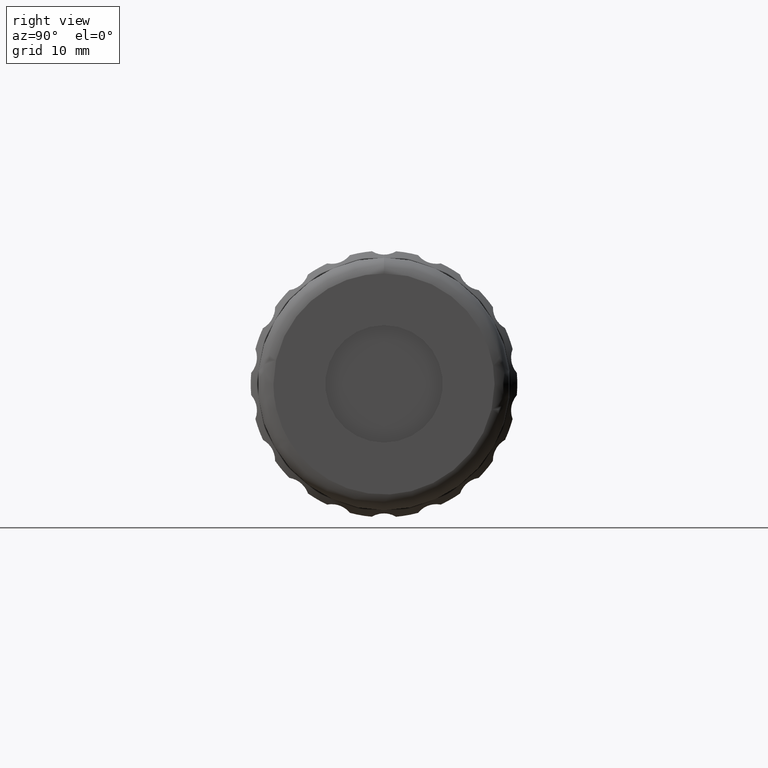
[diagram: clean part render]
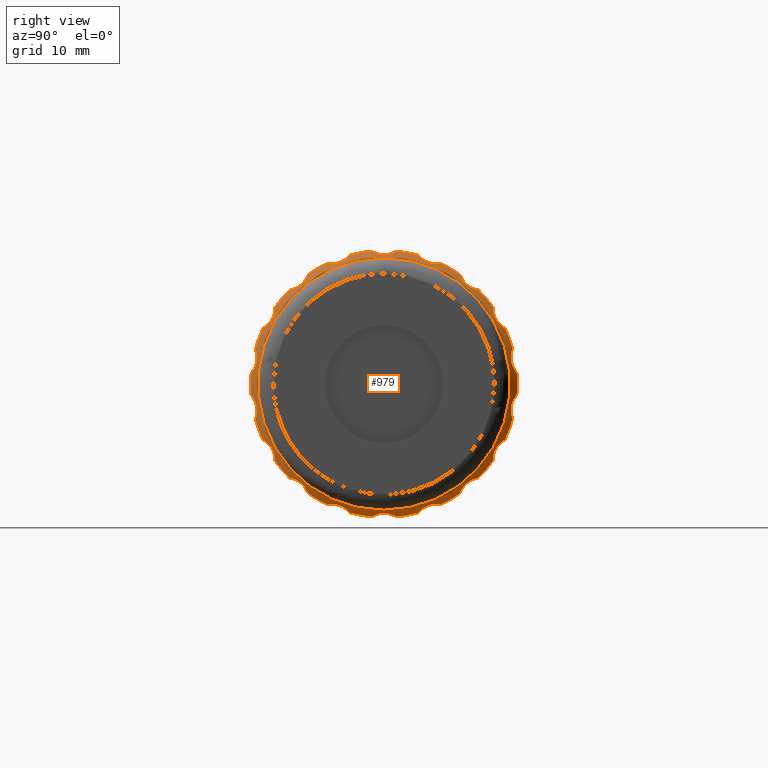
[diagram: same view with one face highlighted and labeled with its STEP entity id]
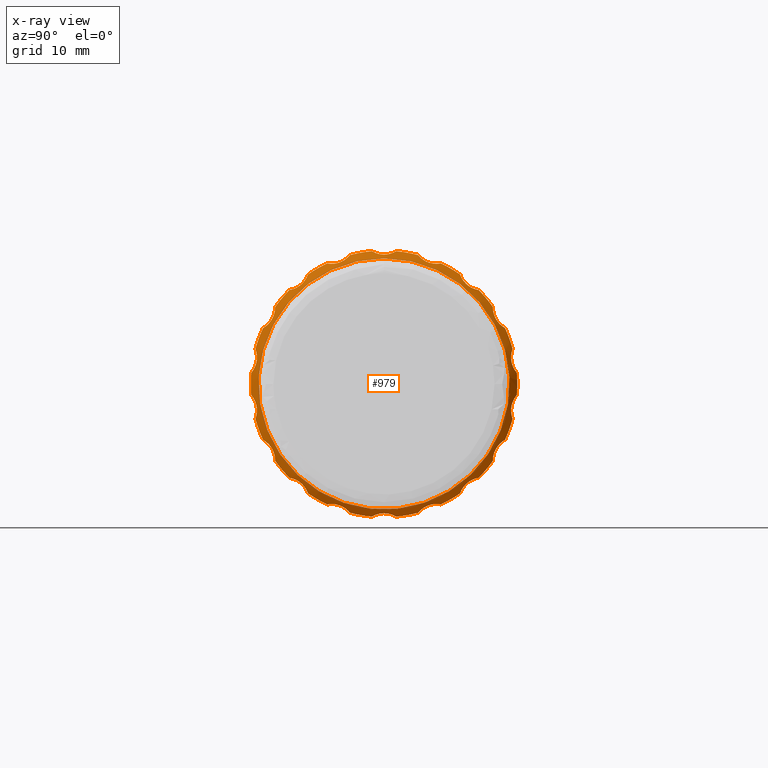
[diagram: x-ray of the same camera — body ghosted, the highlighted face saturated]
A machine part, right view. The second image highlights one B-rep face of the part: STEP entity #979.
The next image is the same camera in x-ray: the body ghosted, the highlighted face saturated — about 11% of this face is hidden behind the body in this view.
In plain terms, the highlighted conical surface has half-angle 45 deg.
Its self-contained STEP definition (entity closure, byte-faithful):
#3 = CARTESIAN_POINT ( 'NONE',  ( 32.44685803487876541, 32.13297559990991914, 9.804276299192837385 ) ) ;
#5 = CARTESIAN_POINT ( 'NONE',  ( 32.88671825240745505, 52.21565638232765849, 15.35848564612278899 ) ) ;
#8 = CARTESIAN_POINT ( 'NONE',  ( 32.59371544402080190, 44.68697132165852537, -16.80145764331209435 ) ) ;
#13 = CIRCLE ( 'NONE', #960, 16.99999999999998579 ) ;
#14 = CARTESIAN_POINT ( 'NONE',  ( 32.44685803487879383, 47.56772114077768521, 16.92948717948718240 ) ) ;
#15 = CARTESIAN_POINT ( 'NONE',  ( 32.94671223884981970, 31.80451600533105250, 8.376639965934812082 ) ) ;
#16 = ORIENTED_EDGE ( 'NONE', *, *, #770, .T. ) ;
#19 = EDGE_CURVE ( 'NONE', #84, #84, #1354, .T. ) ;
#27 = CARTESIAN_POINT ( 'NONE',  ( 32.44685803487877962, 29.61726367720591568, 4.463034991433923793 ) ) ;
#28 = VERTEX_POINT ( 'NONE', #528 ) ;
#29 = CARTESIAN_POINT ( 'NONE',  ( 32.88806413580812915, 51.15274612974332058, 15.74413730464015160 ) ) ;
#31 = CARTESIAN_POINT ( 'NONE',  ( 32.44685803487877962, 29.08007986503451647, 1.416514203673290728 ) ) ;
#40 = EDGE_CURVE ( 'NONE', #1479, #1426, #2026, .T. ) ;
#41 = CARTESIAN_POINT ( 'NONE',  ( 32.59397570363888264, 34.19973174975009300, 12.01325914816415796 ) ) ;
#46 = CARTESIAN_POINT ( 'NONE',  ( 32.85273454226017975, 60.02911114830940420, 8.896813698364438139 ) ) ;
#47 = CARTESIAN_POINT ( 'NONE',  ( 32.85273454226017975, 31.31202075032431154, 7.683006173255041205 ) ) ;
#49 = ORIENTED_EDGE ( 'NONE', *, *, #810, .T. ) ;
#52 = CIRCLE ( 'NONE', #1140, 17.00000000000000000 ) ;
#57 = CIRCLE ( 'NONE', #1356, 17.00000000000000000 ) ;
#58 = CARTESIAN_POINT ( 'NONE',  ( 32.59397570363893237, 32.13747616120608797, -9.555558641669259501 ) ) ;
#59 = CARTESIAN_POINT ( 'NONE',  ( 32.44685803487876541, 32.13297559990991914, 9.804276299192837385 ) ) ;
#60 = EDGE_CURVE ( 'NONE', #1791, #1866, #1993, .T. ) ;
#61 = VERTEX_POINT ( 'NONE', #192 ) ;
#62 = DIRECTION ( 'NONE',  ( 0.000000000000000000, 1.000000000000000000, -1.953992523340275511E-14 ) ) ;
#74 = CARTESIAN_POINT ( 'NONE',  ( 32.93501117040979409, 35.62512614287679469, -12.82915025000381171 ) ) ;
#76 = CARTESIAN_POINT ( 'NONE',  ( 32.93501117040977277, 60.46042658267626280, -8.010141189208873413 ) ) ;
#78 = DIRECTION ( 'NONE',  ( 1.000000000000000000, -0.000000000000000000, -0.000000000000000000 ) ) ;
#84 = VERTEX_POINT ( 'NONE', #735 ) ;
#85 = CARTESIAN_POINT ( 'NONE',  ( 32.93501117040977988, 31.58149741732376725, 8.010141189208871637 ) ) ;
#90 = CARTESIAN_POINT ( 'NONE',  ( 32.44685803487880094, 46.02096199999999726, 0.000000000000000000 ) ) ;
#93 = CARTESIAN_POINT ( 'NONE',  ( 32.59397570363889685, 36.24294634268018456, -13.72771975950780288 ) ) ;
#100 = CARTESIAN_POINT ( 'NONE',  ( 32.71832649179923891, 34.44935860872440969, -12.08340433005123593 ) ) ;
#101 = CARTESIAN_POINT ( 'NONE',  ( 32.44685803487877251, 62.96184413496547450, -1.416514203673302941 ) ) ;
#102 = CARTESIAN_POINT ( 'NONE',  ( 32.44685803487877962, 29.61726367720591568, 4.463034991433923793 ) ) ;
#104 = VERTEX_POINT ( 'NONE', #31 ) ;
#106 = VERTEX_POINT ( 'NONE', #1184 ) ;
#107 = CARTESIAN_POINT ( 'NONE',  ( 32.44685803487879383, 47.56772114077768521, 16.92948717948718240 ) ) ;
#112 = CARTESIAN_POINT ( 'NONE',  ( 32.94671223884982680, 56.51507179325524532, -12.73377765964754893 ) ) ;
#117 = CARTESIAN_POINT ( 'NONE',  ( 32.59397570363893237, 41.52778952056901574, -16.24411527478351047 ) ) ;
#120 = CARTESIAN_POINT ( 'NONE',  ( 32.59397570363886132, 62.33536472968091147, 4.230856126619375601 ) ) ;
#121 = B_SPLINE_CURVE_WITH_KNOTS ( 'NONE', 3,
 ( #3, #363, #175, #1302, #1511, #1950, #15, #663, #85, #380, #47, #234, #867, #723 ),
 .UNSPECIFIED., .F., .F.,
 ( 4, 2, 2, 2, 2, 2, 4 ),
 ( 1.398578778534940505E-17, 0.0008570537395405541025, 0.001285580609310826112, 0.001714107479081098664, 0.002142634348851370999, 0.002571161218621643117, 0.003428214958162182583 ),
 .UNSPECIFIED. ) ;
#124 = CARTESIAN_POINT ( 'NONE',  ( 32.85273454226017975, 29.81471811820888362, -3.569201001427910303 ) ) ;
#125 = CARTESIAN_POINT ( 'NONE',  ( 32.44685803487877251, 46.02096199999999726, 0.000000000000000000 ) ) ;
#132 = CARTESIAN_POINT ( 'NONE',  ( 32.44685803487879383, 59.90894840009004696, 9.804276299192796529 ) ) ;
#141 = CARTESIAN_POINT ( 'NONE',  ( 32.44685803487879383, 44.47420285922232353, 16.92948717948717530 ) ) ;
#146 = CARTESIAN_POINT ( 'NONE',  ( 32.85210940846931749, 29.57040993796760020, -2.186719745017569050 ) ) ;
#152 = EDGE_LOOP ( 'NONE', ( #782 ) ) ;
#163 = B_SPLINE_CURVE_WITH_KNOTS ( 'NONE', 3,
 ( #1350, #1177, #1669, #1644, #207, #855, #1187, #866, #1510, #1196, #46, #370, #833, #2007 ),
 .UNSPECIFIED., .F., .F.,
 ( 4, 2, 2, 2, 2, 2, 4 ),
 ( 1.821459649775647449E-17, 0.0008570537395405575720, 0.001285580609310824811, 0.001714107479081089990, 0.002142634348851355387, 0.002571161218621621000, 0.003428214958162146588 ),
 .UNSPECIFIED. ) ;
#173 = CARTESIAN_POINT ( 'NONE',  ( 32.94671223884987654, 51.52699107420922076, -15.55503383706367870 ) ) ;
#175 = CARTESIAN_POINT ( 'NONE',  ( 32.71832649179923180, 32.11174389140475682, 9.297543592584467831 ) ) ;
#182 = CARTESIAN_POINT ( 'NONE',  ( 32.44685803487877962, 33.95401115804232006, 11.97450196783887932 ) ) ;
#184 = CARTESIAN_POINT ( 'NONE',  ( 32.88671825240743374, 40.89412893152615425, 15.74715537869002624 ) ) ;
#185 = AXIS2_PLACEMENT_3D ( 'NONE', #1491, #1317, #1965 ) ;
#192 = CARTESIAN_POINT ( 'NONE',  ( 32.44685803487879383, 44.47420285922232353, 16.92948717948717530 ) ) ;
#194 = DIRECTION ( 'NONE',  ( 1.000000000000000000, -0.000000000000000000, -0.000000000000000000 ) ) ;
#196 = VERTEX_POINT ( 'NONE', #1526 ) ;
#202 = CARTESIAN_POINT ( 'NONE',  ( 32.88806413580809362, 46.58347441928598442, -16.54982318938170494 ) ) ;
#207 = CARTESIAN_POINT ( 'NONE',  ( 32.88671825240740532, 60.63861748527881446, 7.783409789179931870 ) ) ;
#208 = CARTESIAN_POINT ( 'NONE',  ( 32.93404516599887444, 29.81145125225690151, 3.153385542406650810 ) ) ;
#212 = B_SPLINE_CURVE_WITH_KNOTS ( 'NONE', 3,
 ( #107, #1112, #1910, #1583, #2103, #444, #1941, #2070, #458, #1259, #1571, #1763, #274, #141 ),
 .UNSPECIFIED., .F., .F.,
 ( 4, 2, 2, 2, 2, 2, 4 ),
 ( 0.000000000000000000, 0.0008570537395405847855, 0.001285580609310872299, 0.001714107479081159813, 0.002142634348851447327, 0.002571161218621734624, 0.003428214958162296641 ),
 .UNSPECIFIED. ) ;
#214 = EDGE_CURVE ( 'NONE', #1120, #423, #253, .T. ) ;
#219 = CIRCLE ( 'NONE', #1682, 17.00000000000000000 ) ;
#223 = CARTESIAN_POINT ( 'NONE',  ( 32.88671825240744084, 45.45276486285489881, -16.55096588861032814 ) ) ;
#229 = CARTESIAN_POINT ( 'NONE',  ( 32.88806413580812915, 31.96965089949768668, -8.762061639736757002 ) ) ;
#230 = CARTESIAN_POINT ( 'NONE',  ( 32.59397570363887553, 61.23806145043451465, -7.245672108642466469 ) ) ;
#233 = CARTESIAN_POINT ( 'NONE',  ( 32.94671223884983391, 35.30292207748090760, -12.54587797077277322 ) ) ;
#234 = CARTESIAN_POINT ( 'NONE',  ( 32.71993598786255575, 31.01754010897460034, 7.399571673583222875 ) ) ;
#239 = ORIENTED_EDGE ( 'NONE', *, *, #1799, .T. ) ;
#240 = CARTESIAN_POINT ( 'NONE',  ( 32.85273454226020107, 35.90049711072168748, -13.15133936029217665 ) ) ;
#241 = CARTESIAN_POINT ( 'NONE',  ( 32.59397570363888264, 57.84219225024989441, -12.01325914816416329 ) ) ;
#242 = CARTESIAN_POINT ( 'NONE',  ( 32.59371544402077348, 59.90445580054581853, -9.555998637511386562 ) ) ;
#248 = AXIS2_PLACEMENT_3D ( 'NONE', #90, #1025, #426 ) ;
#251 = CARTESIAN_POINT ( 'NONE',  ( 32.93404516599888154, 62.23047274774312143, -3.153385542406664577 ) ) ;
#253 = CIRCLE ( 'NONE', #2059, 16.99999999999997513 ) ;
#259 = CARTESIAN_POINT ( 'NONE',  ( 32.94700126034474152, 62.29466383950087760, -2.726265681694565846 ) ) ;
#269 = CARTESIAN_POINT ( 'NONE',  ( 32.59371544402080190, 57.84262694411020078, 12.01319058448289923 ) ) ;
#270 = DIRECTION ( 'NONE',  ( 0.000000000000000000, 0.000000000000000000, 1.000000000000000000 ) ) ;
#274 = CARTESIAN_POINT ( 'NONE',  ( 32.59397570363890395, 44.68734838835946022, 16.80123075031171354 ) ) ;
#279 = CARTESIAN_POINT ( 'NONE',  ( 32.93404516599890286, 56.85662936152226621, 12.46115531925905273 ) ) ;
#281 = CARTESIAN_POINT ( 'NONE',  ( 32.44685803487878673, 46.02096199999999726, 0.000000000000000000 ) ) ;
#285 = CARTESIAN_POINT ( 'NONE',  ( 32.94671223884986944, 40.24024195723010422, -15.45505450088583821 ) ) ;
#296 = CARTESIAN_POINT ( 'NONE',  ( 32.93501117040981541, 40.63989956541264092, -15.61104309072564078 ) ) ;
#311 = CARTESIAN_POINT ( 'NONE',  ( 32.94671223884979838, 29.74613216397480997, -2.721276841238304378 ) ) ;
#313 = VERTEX_POINT ( 'NONE', #1459 ) ;
#324 = CARTESIAN_POINT ( 'NONE',  ( 32.94700126034471310, 29.79624668935391441, -3.004082092195002662 ) ) ;
#325 = EDGE_CURVE ( 'NONE', #1426, #61, #212, .T. ) ;
#328 = DIRECTION ( 'NONE',  ( 0.000000000000000000, 1.000000000000000000, 8.881784197001252323E-16 ) ) ;
#330 = ORIENTED_EDGE ( 'NONE', *, *, #1453, .T. ) ;
#331 = CARTESIAN_POINT ( 'NONE',  ( 32.44685803487878673, 61.45570754086772070, 7.125210880294360116 ) ) ;
#333 = CARTESIAN_POINT ( 'NONE',  ( 32.71832649179925312, 44.92366211032619816, -16.69450802511422438 ) ) ;
#334 = CARTESIAN_POINT ( 'NONE',  ( 32.85273454226021528, 34.82682132065500724, 12.25041840084325884 ) ) ;
#336 = CARTESIAN_POINT ( 'NONE',  ( 32.88806413580810073, 39.83200033124971640, 15.35935614810683880 ) ) ;
#351 = DIRECTION ( 'NONE',  ( 0.000000000000000000, 1.000000000000000000, 0.000000000000000000 ) ) ;
#353 = EDGE_CURVE ( 'NONE', #1933, #1120, #1488, .T. ) ;
#363 = CARTESIAN_POINT ( 'NONE',  ( 32.59371544402078769, 32.13746819945419020, 9.555998637511374127 ) ) ;
#366 = DIRECTION ( 'NONE',  ( 0.000000000000000000, 0.000000000000000000, 1.000000000000000000 ) ) ;
#368 = VERTEX_POINT ( 'NONE', #1087 ) ;
#370 = CARTESIAN_POINT ( 'NONE',  ( 32.71993598786254864, 59.93088999195953903, 9.293558664531927249 ) ) ;
#374 = EDGE_CURVE ( 'NONE', #1866, #1962, #57, .T. ) ;
#379 = CARTESIAN_POINT ( 'NONE',  ( 32.94671223884989075, 31.65835599381003362, -8.123483399945421013 ) ) ;
#380 = CARTESIAN_POINT ( 'NONE',  ( 32.88806413580806520, 31.40713848021163557, 7.787761549644993231 ) ) ;
#387 = ORIENTED_EDGE ( 'NONE', *, *, #743, .T. ) ;
#407 = CARTESIAN_POINT ( 'NONE',  ( 32.44685803487877962, 62.42466032279407528, -4.463034991433911358 ) ) ;
#420 = DIRECTION ( 'NONE',  ( -1.000000000000000000, 0.000000000000000000, 0.000000000000000000 ) ) ;
#423 = VERTEX_POINT ( 'NONE', #331 ) ;
#426 = DIRECTION ( 'NONE',  ( 0.000000000000000000, 1.000000000000000000, -7.105427357601001859E-15 ) ) ;
#429 = CARTESIAN_POINT ( 'NONE',  ( 32.44685803487877251, 44.47420285922230221, -16.92948717948720727 ) ) ;
#440 = CARTESIAN_POINT ( 'NONE',  ( 32.88806413580808652, 56.22807377565807485, 13.03947610223928599 ) ) ;
#441 = DIRECTION ( 'NONE',  ( -1.000000000000000000, 0.000000000000000000, 2.040851148208006519E-16 ) ) ;
#443 = CARTESIAN_POINT ( 'NONE',  ( 32.93404516599894549, 40.10073146738320560, -15.41567220399188543 ) ) ;
#444 = CARTESIAN_POINT ( 'NONE',  ( 32.93404516599891707, 46.31168852818061055, 16.51083150983224357 ) ) ;
#458 = CARTESIAN_POINT ( 'NONE',  ( 32.93501117040980120, 45.73821546641686098, 16.51001374024769675 ) ) ;
#462 = FACE_BOUND ( 'NONE', #152, .T. ) ;
#463 = EDGE_CURVE ( 'NONE', #1395, #1479, #820, .T. ) ;
#468 = DIRECTION ( 'NONE',  ( 1.000000000000000000, -0.000000000000000000, -2.040851148208006519E-16 ) ) ;
#470 = B_SPLINE_CURVE_WITH_KNOTS ( 'NONE', 3,
 ( #1546, #242, #1998, #1197, #1027, #570, #2016, #1872, #76, #1714, #1836, #1689, #230, #1046 ),
 .UNSPECIFIED., .F., .F.,
 ( 4, 2, 2, 2, 2, 2, 4 ),
 ( 2.194270917860438266E-17, 0.0008570537395405623425, 0.001285580609310835003, 0.001714107479081107555, 0.002142634348851380106, 0.002571161218621652658, 0.003428214958162185619 ),
 .UNSPECIFIED. ) ;
#471 = DIRECTION ( 'NONE',  ( 1.000000000000000000, -0.000000000000000000, -0.000000000000000000 ) ) ;
#475 = CARTESIAN_POINT ( 'NONE',  ( 32.93501117040981541, 51.93341409690916066, -15.41763307084374546 ) ) ;
#477 = CARTESIAN_POINT ( 'NONE',  ( 32.71993598786254154, 29.39155459811817650, 1.821850393098595644 ) ) ;
#479 = CARTESIAN_POINT ( 'NONE',  ( 32.88806413580806520, 62.22167693136037769, 3.427813229224471847 ) ) ;
#482 = CIRCLE ( 'NONE', #1987, 17.00000000000000000 ) ;
#486 = CARTESIAN_POINT ( 'NONE',  ( 32.44685803487880804, 50.35770948083634835, -16.43753695927276226 ) ) ;
#500 = CARTESIAN_POINT ( 'NONE',  ( 32.44685803487878673, 33.95401115804229875, -11.97450196783888821 ) ) ;
#501 = CARTESIAN_POINT ( 'NONE',  ( 32.85210940846931038, 29.81459741884976111, 3.571575765922793355 ) ) ;
#512 = CARTESIAN_POINT ( 'NONE',  ( 32.71993598786259838, 32.11103400804057628, -9.293558664531980540 ) ) ;
#513 = CARTESIAN_POINT ( 'NONE',  ( 32.59397570363886842, 29.24340012357269458, 1.604150078087035025 ) ) ;
#527 = CIRCLE ( 'NONE', #1718, 16.99999999999997513 ) ;
#528 = CARTESIAN_POINT ( 'NONE',  ( 32.44685803487877962, 33.95401115804232006, 11.97450196783887932 ) ) ;
#542 = CARTESIAN_POINT ( 'NONE',  ( 32.93404516599894549, 31.57679921079044405, -8.003639195957664043 ) ) ;
#546 = DIRECTION ( 'NONE',  ( 1.000000000000000000, -0.000000000000000000, -0.000000000000000000 ) ) ;
#562 = VERTEX_POINT ( 'NONE', #908 ) ;
#563 = B_SPLINE_CURVE_WITH_KNOTS ( 'NONE', 3,
 ( #686, #1530, #1826, #1658, #994, #542, #379, #675, #1007, #229, #1975, #512, #58, #1327 ),
 .UNSPECIFIED., .F., .F.,
 ( 4, 2, 2, 2, 2, 2, 4 ),
 ( 8.673617379884035472E-19, 0.0008570537395405953022, 0.001285580609310886611, 0.001714107479081175859, 0.002142634348851465542, 0.002571161218621754573, 0.003428214958162343045 ),
 .UNSPECIFIED. ) ;
#565 = CARTESIAN_POINT ( 'NONE',  ( 32.44685803487882225, 46.02096199999999726, 0.000000000000000000 ) ) ;
#569 = CARTESIAN_POINT ( 'NONE',  ( 32.44685803487877962, 38.77725821771979042, -15.37949139323468373 ) ) ;
#570 = CARTESIAN_POINT ( 'NONE',  ( 32.93404516599885312, 60.17439826102904021, -8.507192313874591960 ) ) ;
#571 = EDGE_CURVE ( 'NONE', #816, #1879, #702, .T. ) ;
#572 = ORIENTED_EDGE ( 'NONE', *, *, #651, .T. ) ;
#578 = CARTESIAN_POINT ( 'NONE',  ( 32.59397570363891816, 55.79897765731979575, 13.72771975950780821 ) ) ;
#581 = ORIENTED_EDGE ( 'NONE', *, *, #1261, .T. ) ;
#589 = AXIS2_PLACEMENT_3D ( 'NONE', #125, #1906, #765 ) ;
#593 = DIRECTION ( 'NONE',  ( 1.000000000000000000, -0.000000000000000000, -0.000000000000000000 ) ) ;
#598 = CARTESIAN_POINT ( 'NONE',  ( 32.71832649179923180, 62.65238706205303032, 1.818341456876850781 ) ) ;
#602 = CARTESIAN_POINT ( 'NONE',  ( 32.93501117040977988, 56.84999067884827895, -12.46565831306566352 ) ) ;
#604 = VERTEX_POINT ( 'NONE', #2018 ) ;
#607 = CARTESIAN_POINT ( 'NONE',  ( 32.85210940846929617, 62.47151406203238366, 2.186719745017569494 ) ) ;
#610 = EDGE_CURVE ( 'NONE', #1312, #104, #482, .T. ) ;
#611 = DIRECTION ( 'NONE',  ( 0.000000000000000000, 1.000000000000000000, 0.000000000000000000 ) ) ;
#612 = CARTESIAN_POINT ( 'NONE',  ( 32.71832649179923180, 62.27129880966106157, -3.979600334337187739 ) ) ;
#617 = AXIS2_PLACEMENT_3D ( 'NONE', #1224, #736, #883 ) ;
#620 = CIRCLE ( 'NONE', #617, 16.99999999999998579 ) ;
#623 = CARTESIAN_POINT ( 'NONE',  ( 32.59397570363888974, 29.70655927031907595, -4.230856126619375601 ) ) ;
#626 = DIRECTION ( 'NONE',  ( 1.000000000000000000, -0.000000000000000000, -0.000000000000000000 ) ) ;
#630 = CARTESIAN_POINT ( 'NONE',  ( 32.59371544402078058, 62.79881279935864313, 1.603818139432604095 ) ) ;
#632 = CARTESIAN_POINT ( 'NONE',  ( 33.44685803487879383, 46.02096199999999726, -2.040851148208057549E-16 ) ) ;
#633 = CARTESIAN_POINT ( 'NONE',  ( 32.71993598786256285, 29.77132104384358158, -3.975612932441852099 ) ) ;
#637 = CARTESIAN_POINT ( 'NONE',  ( 32.94700126034472021, 29.74726016049911692, 2.726265681694551635 ) ) ;
#639 = B_SPLINE_CURVE_WITH_KNOTS ( 'NONE', 3,
 ( #1074, #269, #2043, #1881, #1557, #279, #1223, #1397, #1725, #440, #1566, #2075, #578, #775 ),
 .UNSPECIFIED., .F., .F.,
 ( 4, 2, 2, 2, 2, 2, 4 ),
 ( 2.255140518769849223E-17, 0.0008570537395405681972, 0.001285580609310841074, 0.001714107479081113843, 0.002142634348851386612, 0.002571161218621659597, 0.003428214958162220313 ),
 .UNSPECIFIED. ) ;
#649 = CARTESIAN_POINT ( 'NONE',  ( 32.71832649179923891, 29.77062519033893651, 3.979600334337169087 ) ) ;
#651 = EDGE_CURVE ( 'NONE', #1169, #562, #1343, .T. ) ;
#653 = CARTESIAN_POINT ( 'NONE',  ( 32.93404516599894549, 51.94119253261677471, 15.41567220399189075 ) ) ;
#660 = CARTESIAN_POINT ( 'NONE',  ( 32.94700126034477705, 51.79679758193721995, -15.45657204746853175 ) ) ;
#663 = CARTESIAN_POINT ( 'NONE',  ( 32.94700126034473442, 31.66112224774798278, 8.127785578975540659 ) ) ;
#666 = CARTESIAN_POINT ( 'NONE',  ( 32.85273454226024370, 51.03306520244602495, 15.81961940227117758 ) ) ;
#669 = CARTESIAN_POINT ( 'NONE',  ( 32.94700126034476284, 46.16201308822036253, -16.49987880921160865 ) ) ;
#674 = CARTESIAN_POINT ( 'NONE',  ( 32.93404516599894549, 51.39480538622076011, -15.61454086166568445 ) ) ;
#675 = CARTESIAN_POINT ( 'NONE',  ( 32.94700126034479837, 31.80217333596844398, -8.372093230236085759 ) ) ;
#676 = CARTESIAN_POINT ( 'NONE',  ( 32.59371544402078058, 29.70640130127866385, 4.231266864385898607 ) ) ;
#678 = CARTESIAN_POINT ( 'NONE',  ( 32.59371544402083742, 53.02094014788040255, 15.33195408286590578 ) ) ;
#682 = EDGE_CURVE ( 'NONE', #2041, #313, #2029, .T. ) ;
#685 = CARTESIAN_POINT ( 'NONE',  ( 32.88671825240747637, 51.14779506847382606, -15.74715537868998183 ) ) ;
#686 = CARTESIAN_POINT ( 'NONE',  ( 32.44685803487880804, 30.58621645913232001, -7.125210880294336135 ) ) ;
#689 = CARTESIAN_POINT ( 'NONE',  ( 32.44685803487880094, 50.35770948083630572, 16.43753695927281200 ) ) ;
#702 = CIRCLE ( 'NONE', #1889, 16.99999999999998579 ) ;
#723 = CARTESIAN_POINT ( 'NONE',  ( 32.44685803487879383, 30.58621645913232356, 7.125210880294359228 ) ) ;
#735 = CARTESIAN_POINT ( 'NONE',  ( 33.44685803487879383, 46.02096199999999726, 15.99999999999999645 ) ) ;
#736 = DIRECTION ( 'NONE',  ( 1.000000000000000000, -0.000000000000000000, -0.000000000000000000 ) ) ;
#742 = ORIENTED_EDGE ( 'NONE', *, *, #60, .T. ) ;
#743 = EDGE_CURVE ( 'NONE', #1336, #2037, #13, .T. ) ;
#745 = CARTESIAN_POINT ( 'NONE',  ( 32.85273454226017975, 62.47058842444242543, -2.188910012077419420 ) ) ;
#752 = CARTESIAN_POINT ( 'NONE',  ( 32.85210940846931038, 34.82470436459487928, -12.24933554730703378 ) ) ;
#756 = VERTEX_POINT ( 'NONE', #1340 ) ;
#757 = CIRCLE ( 'NONE', #2019, 17.00000000000000000 ) ;
#765 = DIRECTION ( 'NONE',  ( 0.000000000000000000, 1.000000000000000000, -3.552713678800500929E-15 ) ) ;
#769 = CARTESIAN_POINT ( 'NONE',  ( 32.44685803487878673, 46.02096199999999726, 0.000000000000000000 ) ) ;
#770 = EDGE_CURVE ( 'NONE', #28, #857, #1377, .T. ) ;
#775 = CARTESIAN_POINT ( 'NONE',  ( 32.44685803487878673, 55.71814035268528187, 13.96297718956140166 ) ) ;
#777 = CARTESIAN_POINT ( 'NONE',  ( 32.88806413580811494, 40.88917787025669526, -15.74413730464013028 ) ) ;
#781 = EDGE_CURVE ( 'NONE', #992, #104, #1650, .T. ) ;
#782 = ORIENTED_EDGE ( 'NONE', *, *, #19, .F. ) ;
#790 = CARTESIAN_POINT ( 'NONE',  ( 32.94700126034474152, 62.24567731064608722, 3.004082092195003106 ) ) ;
#795 = CARTESIAN_POINT ( 'NONE',  ( 32.71832649179921759, 29.38953693794697131, -1.818341456876848783 ) ) ;
#798 = CIRCLE ( 'NONE', #1351, 17.00000000000000000 ) ;
#799 = CARTESIAN_POINT ( 'NONE',  ( 32.59371544402079479, 41.52806624538890645, 16.24445744886884668 ) ) ;
#800 = CARTESIAN_POINT ( 'NONE',  ( 32.44685803487880094, 50.35770948083630572, 16.43753695927281200 ) ) ;
#804 = CARTESIAN_POINT ( 'NONE',  ( 32.71993598786254864, 62.27060295615641650, 3.975612932441850322 ) ) ;
#809 = CARTESIAN_POINT ( 'NONE',  ( 32.44685803487880804, 62.42466032279404686, 4.463034991433892706 ) ) ;
#810 = EDGE_CURVE ( 'NONE', #857, #1837, #121, .T. ) ;
#816 = VERTEX_POINT ( 'NONE', #1696 ) ;
#820 = B_SPLINE_CURVE_WITH_KNOTS ( 'NONE', 3,
 ( #1159, #678, #1470, #1978, #5, #653, #1952, #1672, #987, #29, #666, #1147, #1796, #689 ),
 .UNSPECIFIED., .F., .F.,
 ( 4, 2, 2, 2, 2, 2, 4 ),
 ( 6.938893903907227607E-18, 0.0008570537395405813160, 0.001285580609310871866, 0.001714107479081162415, 0.002142634348851451230, 0.002571161218621741996, 0.003428214958162328733 ),
 .UNSPECIFIED. ) ;
#822 = EDGE_CURVE ( 'NONE', #1180, #368, #620, .T. ) ;
#833 = CARTESIAN_POINT ( 'NONE',  ( 32.59397570363886842, 59.90444783879402024, 9.555558641669255948 ) ) ;
#838 = AXIS2_PLACEMENT_3D ( 'NONE', #632, #468, #366 ) ;
#845 = ORIENTED_EDGE ( 'NONE', *, *, #1178, .T. ) ;
#846 = CARTESIAN_POINT ( 'NONE',  ( 32.71993598786256285, 52.75789697862287397, -15.31241445645989252 ) ) ;
#855 = CARTESIAN_POINT ( 'NONE',  ( 32.93404516599887444, 60.46512478920966061, 8.003639195957678254 ) ) ;
#856 = CARTESIAN_POINT ( 'NONE',  ( 32.85273454226015843, 29.57133557555759396, 2.188910012077406986 ) ) ;
#857 = VERTEX_POINT ( 'NONE', #59 ) ;
#861 = CARTESIAN_POINT ( 'NONE',  ( 32.94700126034476284, 35.30699293778219783, 12.54897458209229022 ) ) ;
#866 = CARTESIAN_POINT ( 'NONE',  ( 32.94700126034472021, 60.23975066403164647, 8.372093230236089312 ) ) ;
#867 = CARTESIAN_POINT ( 'NONE',  ( 32.59397570363886842, 30.80386254956549053, 7.245672108642462028 ) ) ;
#869 = ORIENTED_EDGE ( 'NONE', *, *, #325, .T. ) ;
#877 = VERTEX_POINT ( 'NONE', #2025 ) ;
#882 = CARTESIAN_POINT ( 'NONE',  ( 32.88806413580807941, 35.81385022434190546, -13.03947610223929310 ) ) ;
#883 = DIRECTION ( 'NONE',  ( 0.000000000000000000, 1.000000000000000000, 0.000000000000000000 ) ) ;
#892 = CARTESIAN_POINT ( 'NONE',  ( 32.44685803487877962, 58.08791284195767446, -11.97450196783888110 ) ) ;
#908 = CARTESIAN_POINT ( 'NONE',  ( 32.44685803487879383, 55.71814035268526766, -13.96297718956138922 ) ) ;
#913 = DIRECTION ( 'NONE',  ( 0.000000000000000000, 0.000000000000000000, 1.000000000000000000 ) ) ;
#923 = CARTESIAN_POINT ( 'NONE',  ( 32.93404516599890286, 56.41121047876224281, -12.83490613950238668 ) ) ;
#925 = EDGE_CURVE ( 'NONE', #604, #816, #470, .T. ) ;
#927 = CONICAL_SURFACE ( 'NONE', #1711, 17.00000000000001421, 0.7853981633974447263 ) ;
#928 = DIRECTION ( 'NONE',  ( 1.000000000000000000, -0.000000000000000000, -0.000000000000000000 ) ) ;
#930 = DIRECTION ( 'NONE',  ( 1.000000000000000000, -0.000000000000000000, -0.000000000000000000 ) ) ;
#932 = CIRCLE ( 'NONE', #248, 16.99999999999998579 ) ;
#934 = CARTESIAN_POINT ( 'NONE',  ( 32.44685803487877251, 62.96184413496547450, 1.416514203673303385 ) ) ;
#936 = CARTESIAN_POINT ( 'NONE',  ( 32.71993598786254154, 57.58876427318681834, -12.08479540418657017 ) ) ;
#940 = CARTESIAN_POINT ( 'NONE',  ( 32.44685803487877962, 38.77725821771979042, -15.37949139323468373 ) ) ;
#944 = ORIENTED_EDGE ( 'NONE', *, *, #1152, .T. ) ;
#950 = CARTESIAN_POINT ( 'NONE',  ( 32.44685803487877251, 62.96184413496547450, 1.416514203673303385 ) ) ;
#958 = CARTESIAN_POINT ( 'NONE',  ( 32.44685803487879383, 41.68421451916365328, -16.43753695927281200 ) ) ;
#960 = AXIS2_PLACEMENT_3D ( 'NONE', #1670, #1477, #351 ) ;
#971 = CARTESIAN_POINT ( 'NONE',  ( 32.44685803487878673, 46.02096199999999726, 0.000000000000000000 ) ) ;
#977 = B_SPLINE_CURVE_WITH_KNOTS ( 'NONE', 3,
 ( #407, #1244, #612, #1063, #1407, #251, #1418, #259, #1863, #1588, #745, #1713, #1233, #101 ),
 .UNSPECIFIED., .F., .F.,
 ( 4, 2, 2, 2, 2, 2, 4 ),
 ( 6.071532165918824830E-18, 0.0008570537395405441279, 0.001285580609310812668, 0.001714107479081081534, 0.002142634348851350182, 0.002571161218621618831, 0.003428214958162156129 ),
 .UNSPECIFIED. ) ;
#979 = ADVANCED_FACE ( 'NONE', ( #2055, #462 ), #927, .T. ) ;
#980 = DIRECTION ( 'NONE',  ( 1.000000000000000000, -0.000000000000000000, -0.000000000000000000 ) ) ;
#983 = CARTESIAN_POINT ( 'NONE',  ( 32.71832649179924601, 41.34222858161454184, 16.06300466438845120 ) ) ;
#987 = CARTESIAN_POINT ( 'NONE',  ( 32.93501117040981541, 51.40202443458736070, 15.61104309072564966 ) ) ;
#992 = VERTEX_POINT ( 'NONE', #102 ) ;
#993 = CARTESIAN_POINT ( 'NONE',  ( 32.44685803487880094, 32.13297559991000441, -9.804276299192871136 ) ) ;
#994 = CARTESIAN_POINT ( 'NONE',  ( 32.88671825240747637, 31.40330651472126533, -7.783409789179908778 ) ) ;
#1001 = CARTESIAN_POINT ( 'NONE',  ( 32.85273454226022238, 46.72175410136635065, -16.57981987161947046 ) ) ;
#1002 = B_SPLINE_CURVE_WITH_KNOTS ( 'NONE', 3,
 ( #500, #1156, #100, #752, #1396, #1695, #233, #1207, #74, #882, #240, #2014, #93, #1724 ),
 .UNSPECIFIED., .F., .F.,
 ( 4, 2, 2, 2, 2, 2, 4 ),
 ( 1.636534854170084423E-17, 0.0008570537395405636435, 0.001285580609310837171, 0.001714107479081110807, 0.002142634348851384877, 0.002571161218621658296, 0.003428214958162212507 ),
 .UNSPECIFIED. ) ;
#1005 = ORIENTED_EDGE ( 'NONE', *, *, #463, .T. ) ;
#1006 = CARTESIAN_POINT ( 'NONE',  ( 32.94700126034476995, 40.24512641806274615, 15.45657204746855840 ) ) ;
#1007 = CARTESIAN_POINT ( 'NONE',  ( 32.93501117040983672, 31.86424395090698525, -8.499872551038858859 ) ) ;
#1010 = EDGE_CURVE ( 'NONE', #313, #1791, #219, .T. ) ;
#1016 = ORIENTED_EDGE ( 'NONE', *, *, #1022, .T. ) ;
#1022 = EDGE_CURVE ( 'NONE', #61, #756, #757, .T. ) ;
#1025 = DIRECTION ( 'NONE',  ( 1.000000000000000000, -0.000000000000000000, -0.000000000000000000 ) ) ;
#1027 = CARTESIAN_POINT ( 'NONE',  ( 32.88671825240738400, 60.07042034813371600, -8.767556099430425576 ) ) ;
#1030 = CARTESIAN_POINT ( 'NONE',  ( 32.59397570363889685, 47.35457561164055562, -16.80123075031171709 ) ) ;
#1040 = B_SPLINE_CURVE_WITH_KNOTS ( 'NONE', 3,
 ( #1155, #799, #983, #1803, #184, #1814, #1465, #1006, #1128, #336, #1779, #1499, #1983, #1176 ),
 .UNSPECIFIED., .F., .F.,
 ( 4, 2, 2, 2, 2, 2, 4 ),
 ( 1.430489624538199204E-17, 0.0008570537395405792560, 0.001285580609310864927, 0.001714107479081150706, 0.002142634348851436485, 0.002571161218621722047, 0.003428214958162300111 ),
 .UNSPECIFIED. ) ;
#1046 = CARTESIAN_POINT ( 'NONE',  ( 32.44685803487879383, 61.45570754086768517, -7.125210880294358340 ) ) ;
#1049 = DIRECTION ( 'NONE',  ( 0.000000000000000000, 0.000000000000000000, 1.000000000000000000 ) ) ;
#1053 = CARTESIAN_POINT ( 'NONE',  ( 32.44685803487879383, 55.71814035268526766, -13.96297718956138922 ) ) ;
#1061 = AXIS2_PLACEMENT_3D ( 'NONE', #769, #928, #1930 ) ;
#1063 = CARTESIAN_POINT ( 'NONE',  ( 32.85210940846930328, 62.22732658115022275, -3.571575765922810231 ) ) ;
#1068 = CIRCLE ( 'NONE', #589, 17.00000000000001421 ) ;
#1074 = CARTESIAN_POINT ( 'NONE',  ( 32.44685803487877962, 58.08791284195770288, 11.97450196783888643 ) ) ;
#1076 = ORIENTED_EDGE ( 'NONE', *, *, #2021, .T. ) ;
#1082 = CARTESIAN_POINT ( 'NONE',  ( 32.44685803487877251, 29.08007986503451647, -1.416514203673299832 ) ) ;
#1083 = CARTESIAN_POINT ( 'NONE',  ( 32.85210940846933880, 56.13999288115840614, -13.15323611948971383 ) ) ;
#1087 = CARTESIAN_POINT ( 'NONE',  ( 32.44685803487878673, 33.95401115804229875, -11.97450196783888821 ) ) ;
#1092 = CARTESIAN_POINT ( 'NONE',  ( 32.59371544402082321, 55.79883465147822363, -13.72813594343331189 ) ) ;
#1097 = CARTESIAN_POINT ( 'NONE',  ( 32.71993598786259838, 41.33912331703049858, -16.06040833662843070 ) ) ;
#1111 = VERTEX_POINT ( 'NONE', #1289 ) ;
#1112 = CARTESIAN_POINT ( 'NONE',  ( 32.59371544402081611, 47.35495267834149047, 16.80145764331209435 ) ) ;
#1120 = VERTEX_POINT ( 'NONE', #809 ) ;
#1124 = B_SPLINE_CURVE_WITH_KNOTS ( 'NONE', 3,
 ( #1515, #1822, #1310, #1173, #1970, #1959, #1193, #861, #1832, #1841, #334, #1640, #41, #182 ),
 .UNSPECIFIED., .F., .F.,
 ( 4, 2, 2, 2, 2, 2, 4 ),
 ( 1.734723475976807094E-18, 0.0008570537395405545362, 0.001285580609310830883, 0.001714107479081107338, 0.002142634348851384010, 0.002571161218621660031, 0.003428214958162204701 ),
 .UNSPECIFIED. ) ;
#1128 = CARTESIAN_POINT ( 'NONE',  ( 32.93501117040980120, 40.10850990309082675, 15.41763307084376500 ) ) ;
#1140 = AXIS2_PLACEMENT_3D ( 'NONE', #2096, #980, #611 ) ;
#1141 = CARTESIAN_POINT ( 'NONE',  ( 32.71832649179930286, 50.69969541838543137, -16.06300466438838725 ) ) ;
#1147 = CARTESIAN_POINT ( 'NONE',  ( 32.71993598786259838, 50.70280068296951725, 16.06040833662844491 ) ) ;
#1152 = EDGE_CURVE ( 'NONE', #1962, #1169, #1448, .T. ) ;
#1155 = CARTESIAN_POINT ( 'NONE',  ( 32.44685803487876541, 41.68421451916363196, 16.43753695927285818 ) ) ;
#1156 = CARTESIAN_POINT ( 'NONE',  ( 32.59371544402080190, 34.19929705588980795, -12.01319058448289923 ) ) ;
#1157 = CARTESIAN_POINT ( 'NONE',  ( 32.88806413580805099, 29.62488855559159973, 2.319880045867564355 ) ) ;
#1159 = CARTESIAN_POINT ( 'NONE',  ( 32.44685803487879383, 53.26466578228019699, 15.37949139323468017 ) ) ;
#1165 = CARTESIAN_POINT ( 'NONE',  ( 32.44685803487878673, 53.26466578228019699, -15.37949139323468017 ) ) ;
#1169 = VERTEX_POINT ( 'NONE', #1165 ) ;
#1173 = CARTESIAN_POINT ( 'NONE',  ( 32.85210940846934591, 35.90193111884155996, 13.15323611948971916 ) ) ;
#1176 = CARTESIAN_POINT ( 'NONE',  ( 32.44685803487878673, 38.77725821771978332, 15.37949139323467307 ) ) ;
#1177 = CARTESIAN_POINT ( 'NONE',  ( 32.59371544402079479, 61.23844647888725490, 7.245459005800729102 ) ) ;
#1178 = EDGE_CURVE ( 'NONE', #756, #1206, #1040, .T. ) ;
#1180 = VERTEX_POINT ( 'NONE', #993 ) ;
#1184 = CARTESIAN_POINT ( 'NONE',  ( 32.44685803487879383, 36.32378364731472686, -13.96297718956140699 ) ) ;
#1185 = DIRECTION ( 'NONE',  ( 0.000000000000000000, 1.000000000000000000, 0.000000000000000000 ) ) ;
#1187 = CARTESIAN_POINT ( 'NONE',  ( 32.94671223884981259, 60.38356800619005327, 8.123483399945433447 ) ) ;
#1193 = CARTESIAN_POINT ( 'NONE',  ( 32.94671223884984101, 35.52685220674476341, 12.73377765964755071 ) ) ;
#1196 = CARTESIAN_POINT ( 'NONE',  ( 32.88806413580805099, 60.07227310050246416, 8.762061639736737462 ) ) ;
#1197 = CARTESIAN_POINT ( 'NONE',  ( 32.85210940846928196, 60.02841235131358388, -8.899086528648503247 ) ) ;
#1199 = CARTESIAN_POINT ( 'NONE',  ( 32.44685803487880094, 46.02096199999999726, 0.000000000000000000 ) ) ;
#1201 = DIRECTION ( 'NONE',  ( 0.000000000000000000, 1.000000000000000000, 0.000000000000000000 ) ) ;
#1203 = B_SPLINE_CURVE_WITH_KNOTS ( 'NONE', 3,
 ( #1082, #1587, #795, #146, #1427, #1276, #311, #324, #2106, #1417, #124, #633, #623, #1766 ),
 .UNSPECIFIED., .F., .F.,
 ( 4, 2, 2, 2, 2, 2, 4 ),
 ( 9.986437839578378192E-18, 0.0008570537395405388153, 0.001285580609310806380, 0.001714107479081073727, 0.002142634348851341075, 0.002571161218621608856, 0.003428214958162145286 ),
 .UNSPECIFIED. ) ;
#1206 = VERTEX_POINT ( 'NONE', #1362 ) ;
#1207 = CARTESIAN_POINT ( 'NONE',  ( 32.94700126034473442, 35.52309574243637513, -12.73030636577401431 ) ) ;
#1210 = CARTESIAN_POINT ( 'NONE',  ( 32.44685803487880094, 46.02096199999999726, 0.000000000000000000 ) ) ;
#1218 = ORIENTED_EDGE ( 'NONE', *, *, #822, .T. ) ;
#1223 = CARTESIAN_POINT ( 'NONE',  ( 32.94671223884983391, 56.73900192251907981, 12.54587797077277322 ) ) ;
#1224 = CARTESIAN_POINT ( 'NONE',  ( 32.44685803487881515, 46.02096199999999726, 0.000000000000000000 ) ) ;
#1233 = CARTESIAN_POINT ( 'NONE',  ( 32.59397570363887553, 62.79852387642730349, -1.604150078087053233 ) ) ;
#1236 = CARTESIAN_POINT ( 'NONE',  ( 32.85210940846936012, 39.68944081912606947, -15.33995586450726911 ) ) ;
#1244 = CARTESIAN_POINT ( 'NONE',  ( 32.59371544402080190, 62.33552269872132712, -4.231266864385903936 ) ) ;
#1247 = CARTESIAN_POINT ( 'NONE',  ( 32.85273454226025081, 41.00885879755396957, -15.81961940227117047 ) ) ;
#1249 = CARTESIAN_POINT ( 'NONE',  ( 32.93501117040976567, 62.23105311343569923, 3.145384777659983033 ) ) ;
#1252 = ORIENTED_EDGE ( 'NONE', *, *, #781, .T. ) ;
#1254 = CARTESIAN_POINT ( 'NONE',  ( 32.88806413580807941, 57.08989280161696911, -12.31632407541566110 ) ) ;
#1259 = CARTESIAN_POINT ( 'NONE',  ( 32.88806413580809362, 45.45844958071401720, 16.54982318938169783 ) ) ;
#1261 = EDGE_CURVE ( 'NONE', #1837, #992, #932, .T. ) ;
#1272 = CARTESIAN_POINT ( 'NONE',  ( 32.93404516599888154, 62.33144101137909843, 2.580766064489510292 ) ) ;
#1276 = CARTESIAN_POINT ( 'NONE',  ( 32.93404516599887444, 29.71048298862090320, -2.580766064489512512 ) ) ;
#1287 = CARTESIAN_POINT ( 'NONE',  ( 32.44685803487879383, 30.58621645913232356, 7.125210880294359228 ) ) ;
#1289 = CARTESIAN_POINT ( 'NONE',  ( 32.44685803487880804, 29.61726367720594766, -4.463034991433898035 ) ) ;
#1294 = CARTESIAN_POINT ( 'NONE',  ( 32.85273454226017975, 62.22720588179112156, 3.569201001427911191 ) ) ;
#1302 = CARTESIAN_POINT ( 'NONE',  ( 32.85210940846931038, 32.01351164868641774, 8.899086528648499694 ) ) ;
#1308 = CARTESIAN_POINT ( 'NONE',  ( 32.93501117040979409, 46.30370853358314776, -16.51001374024769675 ) ) ;
#1309 = AXIS2_PLACEMENT_3D ( 'NONE', #971, #2089, #328 ) ;
#1310 = CARTESIAN_POINT ( 'NONE',  ( 32.71832649179926733, 36.13051957456375618, 13.49406587643664324 ) ) ;
#1312 = VERTEX_POINT ( 'NONE', #2081 ) ;
#1317 = DIRECTION ( 'NONE',  ( 1.000000000000000000, -0.000000000000000000, -0.000000000000000000 ) ) ;
#1321 = CARTESIAN_POINT ( 'NONE',  ( 32.71993598786257706, 47.11445589906591636, -16.69313033811515012 ) ) ;
#1326 = CARTESIAN_POINT ( 'NONE',  ( 32.44685803487878673, 53.26466578228019699, -15.37949139323468017 ) ) ;
#1327 = CARTESIAN_POINT ( 'NONE',  ( 32.44685803487880094, 32.13297559991000441, -9.804276299192871136 ) ) ;
#1336 = VERTEX_POINT ( 'NONE', #132 ) ;
#1337 = CARTESIAN_POINT ( 'NONE',  ( 32.85273454226022949, 52.35012353516404460, -15.34024937236954855 ) ) ;
#1340 = CARTESIAN_POINT ( 'NONE',  ( 32.44685803487876541, 41.68421451916363196, 16.43753695927285818 ) ) ;
#1343 = CIRCLE ( 'NONE', #1061, 17.00000000000000000 ) ;
#1344 = CARTESIAN_POINT ( 'NONE',  ( 32.93404516599891707, 45.73023547181938397, -16.51083150983224002 ) ) ;
#1350 = CARTESIAN_POINT ( 'NONE',  ( 32.44685803487878673, 61.45570754086772070, 7.125210880294360116 ) ) ;
#1351 = AXIS2_PLACEMENT_3D ( 'NONE', #2035, #420, #913 ) ;
#1354 = CIRCLE ( 'NONE', #838, 15.99999999999999645 ) ;
#1356 = AXIS2_PLACEMENT_3D ( 'NONE', #1922, #930, #2093 ) ;
#1362 = CARTESIAN_POINT ( 'NONE',  ( 32.44685803487878673, 38.77725821771978332, 15.37949139323467307 ) ) ;
#1366 = VERTEX_POINT ( 'NONE', #1911 ) ;
#1377 = CIRCLE ( 'NONE', #185, 17.00000000000001421 ) ;
#1378 = ORIENTED_EDGE ( 'NONE', *, *, #925, .T. ) ;
#1395 = VERTEX_POINT ( 'NONE', #2100 ) ;
#1396 = CARTESIAN_POINT ( 'NONE',  ( 32.88671825240743374, 34.94694193895062284, -12.31354536760549223 ) ) ;
#1397 = CARTESIAN_POINT ( 'NONE',  ( 32.94700126034476284, 56.51882825756361228, 12.73030636577400720 ) ) ;
#1398 = DIRECTION ( 'NONE',  ( 0.000000000000000000, 1.000000000000000000, 1.776356839400250465E-15 ) ) ;
#1404 = VERTEX_POINT ( 'NONE', #1623 ) ;
#1407 = CARTESIAN_POINT ( 'NONE',  ( 32.88671825240739821, 62.22181512952325022, -3.433610011084526459 ) ) ;
#1409 = ORIENTED_EDGE ( 'NONE', *, *, #610, .F. ) ;
#1411 = CARTESIAN_POINT ( 'NONE',  ( 32.88671825240746216, 39.82626761767232892, -15.35848564612279432 ) ) ;
#1412 = ORIENTED_EDGE ( 'NONE', *, *, #682, .T. ) ;
#1417 = CARTESIAN_POINT ( 'NONE',  ( 32.88806413580805810, 29.82024706863964880, -3.427813229224472291 ) ) ;
#1418 = CARTESIAN_POINT ( 'NONE',  ( 32.94671223884980549, 62.24503099672836015, -3.009155866290945003 ) ) ;
#1420 = VERTEX_POINT ( 'NONE', #1598 ) ;
#1423 = ORIENTED_EDGE ( 'NONE', *, *, #2082, .T. ) ;
#1426 = VERTEX_POINT ( 'NONE', #14 ) ;
#1427 = CARTESIAN_POINT ( 'NONE',  ( 32.88671825240740532, 29.62277607563510173, -2.314480119284870518 ) ) ;
#1433 = CARTESIAN_POINT ( 'NONE',  ( 32.44685803487880804, 62.42466032279404686, 4.463034991433892706 ) ) ;
#1448 = B_SPLINE_CURVE_WITH_KNOTS ( 'NONE', 3,
 ( #486, #1936, #1141, #1825, #685, #674, #173, #660, #475, #1974, #1337, #846, #1792, #1326 ),
 .UNSPECIFIED., .F., .F.,
 ( 4, 2, 2, 2, 2, 2, 4 ),
 ( 1.201851678989727231E-17, 0.0008570537395405912907, 0.001285580609310872733, 0.001714107479081154392, 0.002142634348851436485, 0.002571161218621717710, 0.003428214958162281029 ),
 .UNSPECIFIED. ) ;
#1453 = EDGE_CURVE ( 'NONE', #1404, #1395, #1483, .T. ) ;
#1458 = CARTESIAN_POINT ( 'NONE',  ( 32.59371544402081611, 39.02098385211958487, -15.33195408286590578 ) ) ;
#1459 = CARTESIAN_POINT ( 'NONE',  ( 32.44685803487879383, 41.68421451916365328, -16.43753695927281200 ) ) ;
#1461 = ORIENTED_EDGE ( 'NONE', *, *, #1010, .T. ) ;
#1465 = CARTESIAN_POINT ( 'NONE',  ( 32.94671223884984812, 40.51493292579076666, 15.55503383706371423 ) ) ;
#1470 = CARTESIAN_POINT ( 'NONE',  ( 32.71832649179928865, 52.76194463661674661, 15.31240733331347492 ) ) ;
#1474 = ORIENTED_EDGE ( 'NONE', *, *, #353, .T. ) ;
#1477 = DIRECTION ( 'NONE',  ( 1.000000000000000000, -0.000000000000000000, -0.000000000000000000 ) ) ;
#1479 = VERTEX_POINT ( 'NONE', #800 ) ;
#1483 = CIRCLE ( 'NONE', #1309, 17.00000000000000000 ) ;
#1488 = B_SPLINE_CURVE_WITH_KNOTS ( 'NONE', 3,
 ( #950, #630, #598, #607, #1752, #1272, #2061, #790, #1249, #479, #1294, #804, #120, #1433 ),
 .UNSPECIFIED., .F., .F.,
 ( 4, 2, 2, 2, 2, 2, 4 ),
 ( 3.903127820947815962E-18, 0.0008570537395405356711, 0.001285580609310801392, 0.001714107479081067439, 0.002142634348851333269, 0.002571161218621598882, 0.003428214958162131842 ),
 .UNSPECIFIED. ) ;
#1491 = CARTESIAN_POINT ( 'NONE',  ( 32.44685803487877962, 46.02096199999999726, 0.000000000000000000 ) ) ;
#1499 = CARTESIAN_POINT ( 'NONE',  ( 32.71993598786257706, 39.28402702137709923, 15.31241445645988897 ) ) ;
#1510 = CARTESIAN_POINT ( 'NONE',  ( 32.93501117040975146, 60.17768004909310520, 8.499872551038848201 ) ) ;
#1511 = CARTESIAN_POINT ( 'NONE',  ( 32.88671825240741242, 31.97150365186628918, 8.767556099430427352 ) ) ;
#1514 = CARTESIAN_POINT ( 'NONE',  ( 32.94671223884985523, 45.87480198847892865, -16.50012336588022066 ) ) ;
#1515 = CARTESIAN_POINT ( 'NONE',  ( 32.44685803487879383, 36.32378364731472686, 13.96297718956139100 ) ) ;
#1523 = ORIENTED_EDGE ( 'NONE', *, *, #2060, .F. ) ;
#1526 = CARTESIAN_POINT ( 'NONE',  ( 32.44685803487877251, 62.96184413496547450, -1.416514203673302941 ) ) ;
#1530 = CARTESIAN_POINT ( 'NONE',  ( 32.59371544402083742, 30.80347752111280712, -7.245459005800692687 ) ) ;
#1533 = EDGE_CURVE ( 'NONE', #1366, #1180, #563, .T. ) ;
#1546 = CARTESIAN_POINT ( 'NONE',  ( 32.44685803487875120, 59.90894840009008959, -9.804276299192858701 ) ) ;
#1548 = ORIENTED_EDGE ( 'NONE', *, *, #1971, .T. ) ;
#1557 = CARTESIAN_POINT ( 'NONE',  ( 32.88671825240743374, 57.09498206104940010, 12.31354536760548690 ) ) ;
#1566 = CARTESIAN_POINT ( 'NONE',  ( 32.85273454226020817, 56.14142688927830704, 13.15133936029216954 ) ) ;
#1571 = CARTESIAN_POINT ( 'NONE',  ( 32.85273454226021528, 45.32016989863367229, 16.57981987161946691 ) ) ;
#1576 = CARTESIAN_POINT ( 'NONE',  ( 32.44685803487877962, 58.08791284195770288, 11.97450196783888643 ) ) ;
#1583 = CARTESIAN_POINT ( 'NONE',  ( 32.85210940846934591, 46.72407182862872332, 16.58035111081103352 ) ) ;
#1587 = CARTESIAN_POINT ( 'NONE',  ( 32.59371544402079479, 29.24311120064134784, -1.603818139432597878 ) ) ;
#1588 = CARTESIAN_POINT ( 'NONE',  ( 32.88806413580805099, 62.41703544440839835, -2.319880045867577234 ) ) ;
#1589 = CARTESIAN_POINT ( 'NONE',  ( 32.44685803487877251, 46.02096199999999726, 0.000000000000000000 ) ) ;
#1591 = CARTESIAN_POINT ( 'NONE',  ( 32.94700126034479837, 40.51021575157182042, -15.55305667428728533 ) ) ;
#1597 = CARTESIAN_POINT ( 'NONE',  ( 32.44685803487877962, 62.42466032279407528, -4.463034991433911358 ) ) ;
#1598 = CARTESIAN_POINT ( 'NONE',  ( 32.44685803487879383, 36.32378364731472686, 13.96297718956139100 ) ) ;
#1603 = EDGE_CURVE ( 'NONE', #423, #1336, #163, .T. ) ;
#1614 = CIRCLE ( 'NONE', #1715, 17.00000000000000000 ) ;
#1623 = CARTESIAN_POINT ( 'NONE',  ( 32.44685803487878673, 55.71814035268528187, 13.96297718956140166 ) ) ;
#1640 = CARTESIAN_POINT ( 'NONE',  ( 32.71993598786254864, 34.45315972681317618, 12.08479540418656484 ) ) ;
#1644 = CARTESIAN_POINT ( 'NONE',  ( 32.85210940846929617, 60.73152217994227442, 7.681264582162558696 ) ) ;
#1645 = EDGE_CURVE ( 'NONE', #368, #106, #1002, .T. ) ;
#1650 = B_SPLINE_CURVE_WITH_KNOTS ( 'NONE', 3,
 ( #27, #676, #649, #501, #1659, #208, #1986, #637, #1782, #1157, #856, #477, #513, #1806 ),
 .UNSPECIFIED., .F., .F.,
 ( 4, 2, 2, 2, 2, 2, 4 ),
 ( 2.301370753934467615E-17, 0.0008570537395405523678, 0.001285580609310820258, 0.001714107479081088256, 0.002142634348851356254, 0.002571161218621624035, 0.003428214958162163501 ),
 .UNSPECIFIED. ) ;
#1651 = CARTESIAN_POINT ( 'NONE',  ( 32.44685803487877962, 47.56772114077767810, -16.92948717948717885 ) ) ;
#1653 = CARTESIAN_POINT ( 'NONE',  ( 32.44685803487878673, 46.02096199999999726, 0.000000000000000000 ) ) ;
#1658 = CARTESIAN_POINT ( 'NONE',  ( 32.85210940846936722, 31.31040182005778760, -7.681264582162520504 ) ) ;
#1659 = CARTESIAN_POINT ( 'NONE',  ( 32.88671825240740532, 29.82010887047672298, 3.433610011084513136 ) ) ;
#1669 = CARTESIAN_POINT ( 'NONE',  ( 32.71832649179925312, 61.02747999826900127, 7.396964432529774314 ) ) ;
#1670 = CARTESIAN_POINT ( 'NONE',  ( 32.44685803487880094, 46.02096199999999726, 0.000000000000000000 ) ) ;
#1672 = CARTESIAN_POINT ( 'NONE',  ( 32.94700126034480547, 51.53170824842818121, 15.55305667428728889 ) ) ;
#1682 = AXIS2_PLACEMENT_3D ( 'NONE', #1768, #626, #1746 ) ;
#1683 = CARTESIAN_POINT ( 'NONE',  ( 32.85210940846933880, 45.31785217137128541, -16.58035111081102997 ) ) ;
#1689 = CARTESIAN_POINT ( 'NONE',  ( 32.71993598786254154, 61.02438389102538707, -7.399571673583226428 ) ) ;
#1695 = CARTESIAN_POINT ( 'NONE',  ( 32.93404516599888865, 35.18529463847772121, -12.46115531925905806 ) ) ;
#1696 = CARTESIAN_POINT ( 'NONE',  ( 32.44685803487879383, 61.45570754086768517, -7.125210880294358340 ) ) ;
#1698 = ORIENTED_EDGE ( 'NONE', *, *, #2099, .T. ) ;
#1703 = CARTESIAN_POINT ( 'NONE',  ( 32.71832649179927444, 55.91140442543625255, -13.49406587643664146 ) ) ;
#1711 = AXIS2_PLACEMENT_3D ( 'NONE', #1589, #441, #270 ) ;
#1713 = CARTESIAN_POINT ( 'NONE',  ( 32.71993598786254154, 62.65036940188181802, -1.821850393098604748 ) ) ;
#1714 = CARTESIAN_POINT ( 'NONE',  ( 32.88806413580804389, 60.63478551978837316, -7.787761549644995007 ) ) ;
#1715 = AXIS2_PLACEMENT_3D ( 'NONE', #1653, #194, #1185 ) ;
#1718 = AXIS2_PLACEMENT_3D ( 'NONE', #1905, #471, #1744 ) ;
#1724 = CARTESIAN_POINT ( 'NONE',  ( 32.44685803487879383, 36.32378364731472686, -13.96297718956140699 ) ) ;
#1725 = CARTESIAN_POINT ( 'NONE',  ( 32.93501117040978698, 56.41679785712319273, 12.82915025000380460 ) ) ;
#1732 = ORIENTED_EDGE ( 'NONE', *, *, #1828, .T. ) ;
#1734 = CARTESIAN_POINT ( 'NONE',  ( 32.88671825240743374, 56.22445354203716761, -13.04400552683793357 ) ) ;
#1744 = DIRECTION ( 'NONE',  ( 0.000000000000000000, 1.000000000000000000, 0.000000000000000000 ) ) ;
#1745 = CARTESIAN_POINT ( 'NONE',  ( 32.85273454226019396, 57.21510267934501570, -12.25041840084325528 ) ) ;
#1746 = DIRECTION ( 'NONE',  ( 0.000000000000000000, 1.000000000000000000, -1.154631945610162960E-14 ) ) ;
#1751 = ORIENTED_EDGE ( 'NONE', *, *, #1603, .T. ) ;
#1752 = CARTESIAN_POINT ( 'NONE',  ( 32.88671825240740532, 62.41914792436489989, 2.314480119284867854 ) ) ;
#1756 = CARTESIAN_POINT ( 'NONE',  ( 32.44685803487877962, 47.56772114077767810, -16.92948717948717885 ) ) ;
#1763 = CARTESIAN_POINT ( 'NONE',  ( 32.71993598786258417, 44.92746810093409238, 16.69313033811514302 ) ) ;
#1766 = CARTESIAN_POINT ( 'NONE',  ( 32.44685803487880804, 29.61726367720594766, -4.463034991433898035 ) ) ;
#1768 = CARTESIAN_POINT ( 'NONE',  ( 32.44685803487879383, 46.02096199999999726, 0.000000000000000000 ) ) ;
#1779 = CARTESIAN_POINT ( 'NONE',  ( 32.85273454226021528, 39.69180046483592861, 15.34024937236955743 ) ) ;
#1782 = CARTESIAN_POINT ( 'NONE',  ( 32.93501117040975856, 29.71267404596757444, 2.588482820839963949 ) ) ;
#1786 = ORIENTED_EDGE ( 'NONE', *, *, #1861, .T. ) ;
#1791 = VERTEX_POINT ( 'NONE', #429 ) ;
#1792 = CARTESIAN_POINT ( 'NONE',  ( 32.59397570363889685, 53.02050821910746947, -15.33186983759483013 ) ) ;
#1795 = ORIENTED_EDGE ( 'NONE', *, *, #40, .T. ) ;
#1796 = CARTESIAN_POINT ( 'NONE',  ( 32.59397570363893237, 50.51413447943097879, 16.24411527478354955 ) ) ;
#1798 = DIRECTION ( 'NONE',  ( 1.000000000000000000, -0.000000000000000000, -0.000000000000000000 ) ) ;
#1799 = EDGE_CURVE ( 'NONE', #1312, #1111, #1203, .T. ) ;
#1803 = CARTESIAN_POINT ( 'NONE',  ( 32.85210940846933170, 41.01085505425493238, 15.82091131322985866 ) ) ;
#1806 = CARTESIAN_POINT ( 'NONE',  ( 32.44685803487877962, 29.08007986503451647, 1.416514203673290728 ) ) ;
#1813 = EDGE_LOOP ( 'NONE', ( #1409, #239, #1786, #1921, #1218, #1999, #1732, #1412, #1461, #742, #1873, #944, #572, #1698, #2046, #1378, #1909, #1423, #1523, #1474, #2005, #1751, #387, #1842, #330, #1005, #1795, #869, #1016, #845, #1076, #1548, #16, #49, #581, #1252 ) ) ;
#1814 = CARTESIAN_POINT ( 'NONE',  ( 32.93404516599889575, 40.64711861377920599, 15.61454086166572175 ) ) ;
#1822 = CARTESIAN_POINT ( 'NONE',  ( 32.59371544402083742, 36.24308934852178510, 13.72813594343332078 ) ) ;
#1825 = CARTESIAN_POINT ( 'NONE',  ( 32.85210940846939565, 51.03106894574504793, -15.82091131322981070 ) ) ;
#1826 = CARTESIAN_POINT ( 'NONE',  ( 32.71832649179928865, 31.01444400173102878, -7.396964432529726352 ) ) ;
#1828 = EDGE_CURVE ( 'NONE', #106, #2041, #52, .T. ) ;
#1831 = CARTESIAN_POINT ( 'NONE',  ( 32.44685803487880804, 46.02096199999999726, 0.000000000000000000 ) ) ;
#1832 = CARTESIAN_POINT ( 'NONE',  ( 32.93501117040978698, 35.19193332115172979, 12.46565831306566530 ) ) ;
#1836 = CARTESIAN_POINT ( 'NONE',  ( 32.85273454226017265, 60.72990324967569364, -7.683006173255046534 ) ) ;
#1837 = VERTEX_POINT ( 'NONE', #1287 ) ;
#1839 = CARTESIAN_POINT ( 'NONE',  ( 32.44685803487877251, 44.47420285922230221, -16.92948717948720727 ) ) ;
#1841 = CARTESIAN_POINT ( 'NONE',  ( 32.88806413580808652, 34.95203119838304673, 12.31632407541566465 ) ) ;
#1842 = ORIENTED_EDGE ( 'NONE', *, *, #2072, .T. ) ;
#1858 = DIRECTION ( 'NONE',  ( -1.000000000000000000, 0.000000000000000000, 0.000000000000000000 ) ) ;
#1861 = EDGE_CURVE ( 'NONE', #1111, #1366, #527, .T. ) ;
#1863 = CARTESIAN_POINT ( 'NONE',  ( 32.93501117040976567, 62.32924995403242008, -2.588482820839978160 ) ) ;
#1866 = VERTEX_POINT ( 'NONE', #1756 ) ;
#1872 = CARTESIAN_POINT ( 'NONE',  ( 32.94700126034472731, 60.38080175225200463, -8.127785578975545988 ) ) ;
#1873 = ORIENTED_EDGE ( 'NONE', *, *, #374, .T. ) ;
#1879 = VERTEX_POINT ( 'NONE', #1597 ) ;
#1881 = CARTESIAN_POINT ( 'NONE',  ( 32.85210940846933170, 57.21721963540510814, 12.24933554730703378 ) ) ;
#1885 = B_SPLINE_CURVE_WITH_KNOTS ( 'NONE', 3,
 ( #1053, #1092, #1703, #1083, #1734, #923, #112, #2066, #602, #1254, #1745, #936, #241, #892 ),
 .UNSPECIFIED., .F., .F.,
 ( 4, 2, 2, 2, 2, 2, 4 ),
 ( 3.469446951953614189E-18, 0.0008570537395405488984, 0.001285580609310823510, 0.001714107479081098230, 0.002142634348851372734, 0.002571161218621647020, 0.003428214958162201231 ),
 .UNSPECIFIED. ) ;
#1889 = AXIS2_PLACEMENT_3D ( 'NONE', #1199, #78, #62 ) ;
#1905 = CARTESIAN_POINT ( 'NONE',  ( 32.44685803487882225, 46.02096199999999726, 0.000000000000000000 ) ) ;
#1906 = DIRECTION ( 'NONE',  ( 1.000000000000000000, -0.000000000000000000, -0.000000000000000000 ) ) ;
#1908 = CARTESIAN_POINT ( 'NONE',  ( 32.71832649179927444, 39.27997936338324791, -15.31240733331347137 ) ) ;
#1909 = ORIENTED_EDGE ( 'NONE', *, *, #571, .T. ) ;
#1910 = CARTESIAN_POINT ( 'NONE',  ( 32.71832649179926022, 47.11826188967381768, 16.69450802511423149 ) ) ;
#1911 = CARTESIAN_POINT ( 'NONE',  ( 32.44685803487880804, 30.58621645913232001, -7.125210880294336135 ) ) ;
#1921 = ORIENTED_EDGE ( 'NONE', *, *, #1533, .T. ) ;
#1922 = CARTESIAN_POINT ( 'NONE',  ( 32.44685803487878673, 46.02096199999999726, 0.000000000000000000 ) ) ;
#1930 = DIRECTION ( 'NONE',  ( 0.000000000000000000, 1.000000000000000000, 1.065814103640150437E-14 ) ) ;
#1933 = VERTEX_POINT ( 'NONE', #934 ) ;
#1936 = CARTESIAN_POINT ( 'NONE',  ( 32.59371544402085163, 50.51385775461107386, -16.24445744886877918 ) ) ;
#1941 = CARTESIAN_POINT ( 'NONE',  ( 32.94671223884984101, 46.16712201152108008, 16.50012336588021356 ) ) ;
#1950 = CARTESIAN_POINT ( 'NONE',  ( 32.93404516599888865, 31.86752573897096852, 8.507192313874586631 ) ) ;
#1952 = CARTESIAN_POINT ( 'NONE',  ( 32.94671223884986233, 51.80168204276987609, 15.45505450088584176 ) ) ;
#1958 = AXIS2_PLACEMENT_3D ( 'NONE', #1831, #1798, #1969 ) ;
#1959 = CARTESIAN_POINT ( 'NONE',  ( 32.93404516599891707, 35.63071352123775171, 12.83490613950239734 ) ) ;
#1962 = VERTEX_POINT ( 'NONE', #2003 ) ;
#1965 = DIRECTION ( 'NONE',  ( 0.000000000000000000, 1.000000000000000000, 6.217248937900876626E-15 ) ) ;
#1969 = DIRECTION ( 'NONE',  ( 0.000000000000000000, 1.000000000000000000, 0.000000000000000000 ) ) ;
#1970 = CARTESIAN_POINT ( 'NONE',  ( 32.88671825240744084, 35.81747045796283402, 13.04400552683793890 ) ) ;
#1971 = EDGE_CURVE ( 'NONE', #1420, #28, #1124, .T. ) ;
#1974 = CARTESIAN_POINT ( 'NONE',  ( 32.88806413580810784, 52.20992366875027102, -15.35935614810682814 ) ) ;
#1975 = CARTESIAN_POINT ( 'NONE',  ( 32.85273454226025791, 32.01281285169071822, -8.896813698364468337 ) ) ;
#1978 = CARTESIAN_POINT ( 'NONE',  ( 32.85210940846936722, 52.35248318087391795, 15.33995586450727089 ) ) ;
#1983 = CARTESIAN_POINT ( 'NONE',  ( 32.59397570363890395, 39.02141578089251084, 15.33186983759482658 ) ) ;
#1986 = CARTESIAN_POINT ( 'NONE',  ( 32.94671223884979128, 29.79689300327163792, 3.009155866290929904 ) ) ;
#1987 = AXIS2_PLACEMENT_3D ( 'NONE', #1210, #1858, #1049 ) ;
#1993 = B_SPLINE_CURVE_WITH_KNOTS ( 'NONE', 3,
 ( #1839, #8, #333, #1683, #223, #1344, #1514, #669, #1308, #202, #1001, #1321, #1030, #1651 ),
 .UNSPECIFIED., .F., .F.,
 ( 4, 2, 2, 2, 2, 2, 4 ),
 ( 1.699674944388147786E-17, 0.0008570537395406005064, 0.001285580609310882491, 0.001714107479081164800, 0.002142634348851446893, 0.002571161218621729420, 0.003428214958162306616 ),
 .UNSPECIFIED. ) ;
#1998 = CARTESIAN_POINT ( 'NONE',  ( 32.71832649179921759, 59.93018010859523770, -9.297543592584473160 ) ) ;
#1999 = ORIENTED_EDGE ( 'NONE', *, *, #1645, .T. ) ;
#2003 = CARTESIAN_POINT ( 'NONE',  ( 32.44685803487880804, 50.35770948083634835, -16.43753695927276226 ) ) ;
#2005 = ORIENTED_EDGE ( 'NONE', *, *, #214, .T. ) ;
#2007 = CARTESIAN_POINT ( 'NONE',  ( 32.44685803487879383, 59.90894840009004696, 9.804276299192796529 ) ) ;
#2014 = CARTESIAN_POINT ( 'NONE',  ( 32.71993598786256996, 36.12848957674106742, -13.49056406336132952 ) ) ;
#2016 = CARTESIAN_POINT ( 'NONE',  ( 32.94671223884979838, 60.23740799466897045, -8.376639965934810306 ) ) ;
#2018 = CARTESIAN_POINT ( 'NONE',  ( 32.44685803487875120, 59.90894840009008959, -9.804276299192858701 ) ) ;
#2019 = AXIS2_PLACEMENT_3D ( 'NONE', #281, #593, #1398 ) ;
#2021 = EDGE_CURVE ( 'NONE', #1206, #1420, #1614, .T. ) ;
#2025 = CARTESIAN_POINT ( 'NONE',  ( 32.44685803487877962, 58.08791284195767446, -11.97450196783888110 ) ) ;
#2026 = CIRCLE ( 'NONE', #1958, 16.99999999999998579 ) ;
#2029 = B_SPLINE_CURVE_WITH_KNOTS ( 'NONE', 3,
 ( #940, #1458, #1908, #1236, #1411, #443, #285, #1591, #296, #777, #1247, #1097, #117, #958 ),
 .UNSPECIFIED., .F., .F.,
 ( 4, 2, 2, 2, 2, 2, 4 ),
 ( 1.561251128379126385E-17, 0.0008570537395405986632, 0.001285580609310886828, 0.001714107479081174992, 0.002142634348851465108, 0.002571161218621755007, 0.003428214958162318325 ),
 .UNSPECIFIED. ) ;
#2035 = CARTESIAN_POINT ( 'NONE',  ( 32.44685803487880094, 46.02096199999999726, 0.000000000000000000 ) ) ;
#2037 = VERTEX_POINT ( 'NONE', #1576 ) ;
#2041 = VERTEX_POINT ( 'NONE', #569 ) ;
#2043 = CARTESIAN_POINT ( 'NONE',  ( 32.71832649179925312, 57.59256539127557062, 12.08340433005123948 ) ) ;
#2045 = EDGE_CURVE ( 'NONE', #877, #604, #1068, .T. ) ;
#2046 = ORIENTED_EDGE ( 'NONE', *, *, #2045, .T. ) ;
#2055 = FACE_OUTER_BOUND ( 'NONE', #1813, .T. ) ;
#2059 = AXIS2_PLACEMENT_3D ( 'NONE', #565, #546, #1201 ) ;
#2060 = EDGE_CURVE ( 'NONE', #1933, #196, #798, .T. ) ;
#2061 = CARTESIAN_POINT ( 'NONE',  ( 32.94671223884980549, 62.29579183602519521, 2.721276841238303934 ) ) ;
#2066 = CARTESIAN_POINT ( 'NONE',  ( 32.94700126034475574, 56.73493106221781090, -12.54897458209228844 ) ) ;
#2070 = CARTESIAN_POINT ( 'NONE',  ( 32.94700126034477705, 45.87991091177963199, 16.49987880921160865 ) ) ;
#2072 = EDGE_CURVE ( 'NONE', #2037, #1404, #639, .T. ) ;
#2075 = CARTESIAN_POINT ( 'NONE',  ( 32.71993598786259128, 55.91343442325894841, 13.49056406336132952 ) ) ;
#2081 = CARTESIAN_POINT ( 'NONE',  ( 32.44685803487877251, 29.08007986503451647, -1.416514203673299832 ) ) ;
#2082 = EDGE_CURVE ( 'NONE', #1879, #196, #977, .T. ) ;
#2089 = DIRECTION ( 'NONE',  ( 1.000000000000000000, -0.000000000000000000, -0.000000000000000000 ) ) ;
#2093 = DIRECTION ( 'NONE',  ( 0.000000000000000000, 1.000000000000000000, 2.664535259100375697E-14 ) ) ;
#2096 = CARTESIAN_POINT ( 'NONE',  ( 32.44685803487879383, 46.02096199999999726, 0.000000000000000000 ) ) ;
#2099 = EDGE_CURVE ( 'NONE', #562, #877, #1885, .T. ) ;
#2100 = CARTESIAN_POINT ( 'NONE',  ( 32.44685803487879383, 53.26466578228019699, 15.37949139323468017 ) ) ;
#2103 = CARTESIAN_POINT ( 'NONE',  ( 32.88671825240743374, 46.58915913714510282, 16.55096588861032814 ) ) ;
#2106 = CARTESIAN_POINT ( 'NONE',  ( 32.93501117040976567, 29.81087088656429884, -3.145384777659983033 ) ) ;